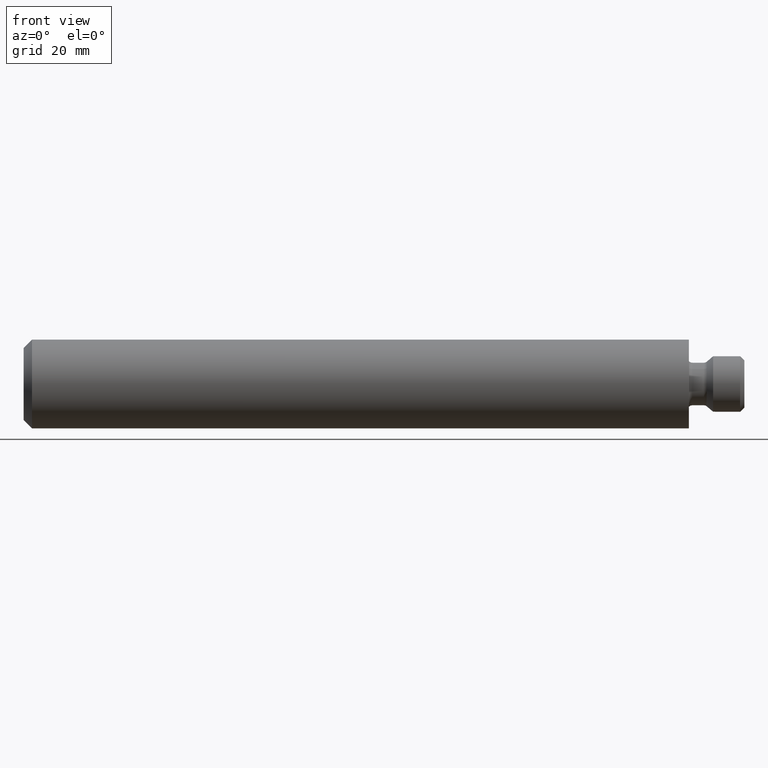
[diagram: clean part render]
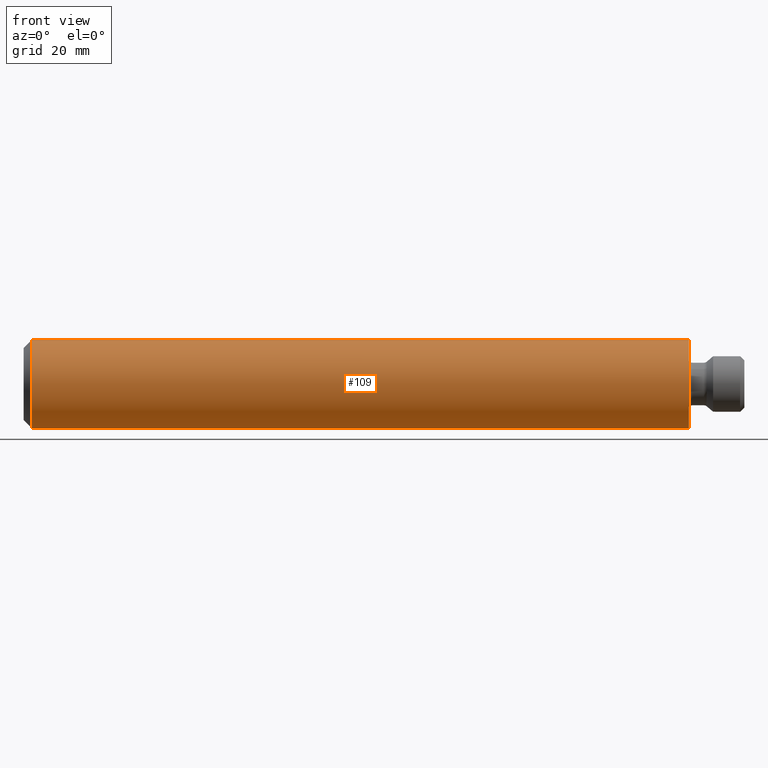
[diagram: same view with one face highlighted and labeled with its STEP entity id]
A machine part, front view. The second image highlights one B-rep face of the part: STEP entity #109.
In plain terms, the highlighted cylindrical surface (bore or boss wall) has radius 8 mm, axis along (1, 0, 0).
Its self-contained STEP definition (entity closure, byte-faithful):
#5 = VERTEX_POINT ( 'NONE', #116 ) ;
#9 = CARTESIAN_POINT ( 'NONE',  ( -118.5000000000000000, 0.0000000000000000000, 0.0000000000000000000 ) ) ;
#102 = CIRCLE ( 'NONE', #103, 7.999999999999989300 ) ;
#103 = AXIS2_PLACEMENT_3D ( 'NONE', #9, #389, #308 ) ;
#108 = AXIS2_PLACEMENT_3D ( 'NONE', #451, #534, #112 ) ;
#109 = ADVANCED_FACE ( 'NONE', ( #437, #162 ), #547, .T. ) ;
#112 = DIRECTION ( 'NONE',  ( 0.0000000000000000000, 0.0000000000000000000, -1.000000000000000000 ) ) ;
#116 = CARTESIAN_POINT ( 'NONE',  ( 0.0000000000000000000, 0.0000000000000000000, -7.999999999999989300 ) ) ;
#120 = AXIS2_PLACEMENT_3D ( 'NONE', #473, #180, #520 ) ;
#162 = FACE_OUTER_BOUND ( 'NONE', #272, .T. ) ;
#180 = DIRECTION ( 'NONE',  ( 1.000000000000000000, 0.0000000000000000000, 0.0000000000000000000 ) ) ;
#192 = ORIENTED_EDGE ( 'NONE', *, *, #514, .F. ) ;
#272 = EDGE_LOOP ( 'NONE', ( #192 ) ) ;
#278 = VERTEX_POINT ( 'NONE', #370 ) ;
#294 = ORIENTED_EDGE ( 'NONE', *, *, #376, .T. ) ;
#308 = DIRECTION ( 'NONE',  ( 0.0000000000000000000, 0.0000000000000000000, -1.000000000000000000 ) ) ;
#361 = EDGE_LOOP ( 'NONE', ( #294 ) ) ;
#370 = CARTESIAN_POINT ( 'NONE',  ( -118.5000000000000000, 0.0000000000000000000, -7.999999999999989300 ) ) ;
#376 = EDGE_CURVE ( 'NONE', #278, #278, #102, .T. ) ;
#389 = DIRECTION ( 'NONE',  ( 1.000000000000000000, 0.0000000000000000000, 0.0000000000000000000 ) ) ;
#437 = FACE_OUTER_BOUND ( 'NONE', #361, .T. ) ;
#451 = CARTESIAN_POINT ( 'NONE',  ( 0.0000000000000000000, 0.0000000000000000000, 0.0000000000000000000 ) ) ;
#453 = CIRCLE ( 'NONE', #108, 7.999999999999989300 ) ;
#473 = CARTESIAN_POINT ( 'NONE',  ( 11.08730158730159100, 0.0000000000000000000, 0.0000000000000000000 ) ) ;
#514 = EDGE_CURVE ( 'NONE', #5, #5, #453, .T. ) ;
#520 = DIRECTION ( 'NONE',  ( 0.0000000000000000000, 0.0000000000000000000, -1.000000000000000000 ) ) ;
#534 = DIRECTION ( 'NONE',  ( 1.000000000000000000, 0.0000000000000000000, 0.0000000000000000000 ) ) ;
#547 = CYLINDRICAL_SURFACE ( 'NONE', #120, 7.999999999999989300 ) ;